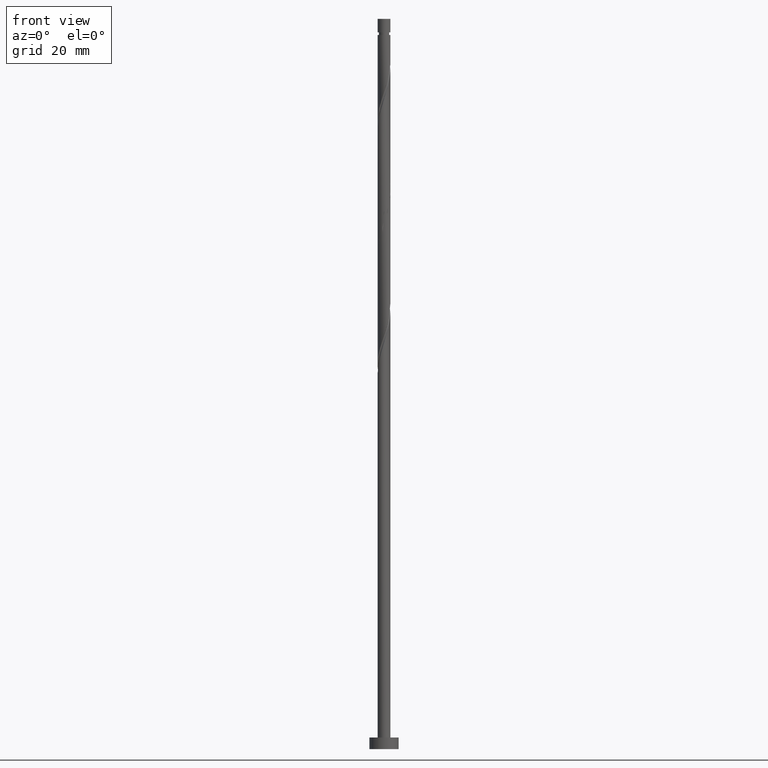
[diagram: clean part render]
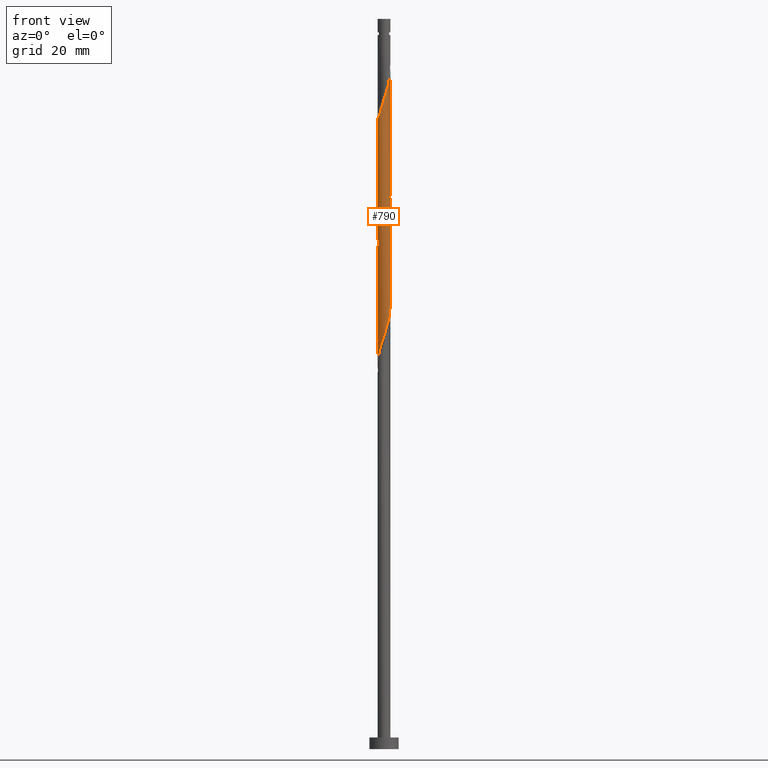
[diagram: same view with one face highlighted and labeled with its STEP entity id]
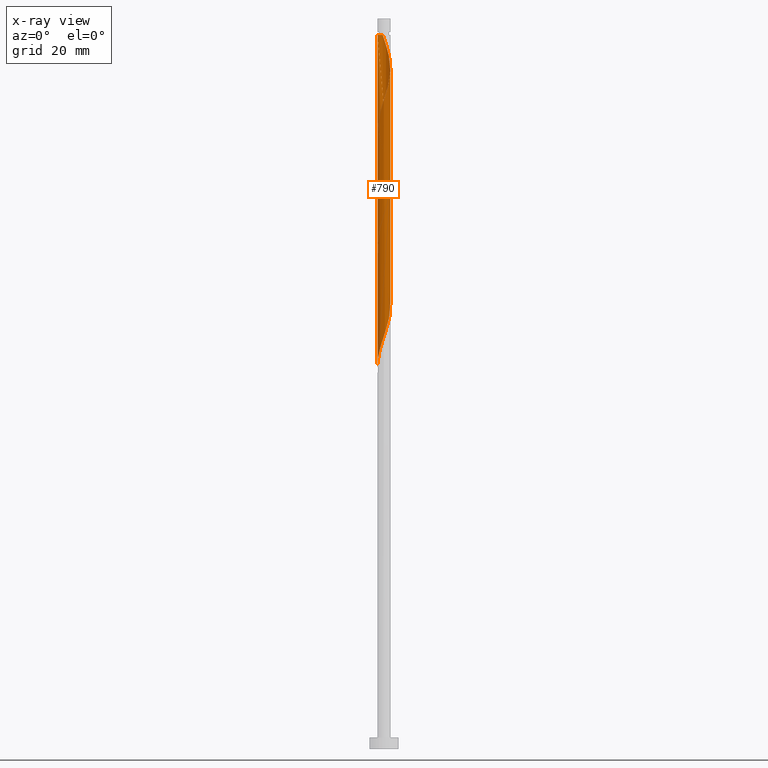
[diagram: x-ray of the same camera — body ghosted, the highlighted face saturated]
A machine part, front view. The second image highlights one B-rep face of the part: STEP entity #790.
The next image is the same camera in x-ray: the body ghosted, the highlighted face saturated — about 0% of this face is hidden behind the body in this view.
In plain terms, the highlighted cylindrical surface (bore or boss wall) has radius 1.1 mm, axis along (-0, -0, -1).
Its self-contained STEP definition (entity closure, byte-faithful):
#18 = ORIENTED_EDGE ( 'NONE', *, *, #606, .F. ) ;
#28 = CARTESIAN_POINT ( 'NONE',  ( -1.100000000000001643, 1.416848213012926496E-15, 65.61334996876993841 ) ) ;
#34 = CARTESIAN_POINT ( 'NONE',  ( 0.6150496721252037835, 0.9284759093548697884, 119.6360475272996808 ) ) ;
#39 = CARTESIAN_POINT ( 'NONE',  ( -1.100000000000001643, -6.821861766358534104E-16, 107.2800166354366240 ) ) ;
#59 = CARTESIAN_POINT ( 'NONE',  ( 0.8718618333782606200, -0.6929722627435900284, 73.80271419396632382 ) ) ;
#60 = LINE ( 'NONE', #134, #1114 ) ;
#62 = EDGE_CURVE ( 'NONE', #919, #1315, #759, .T. ) ;
#63 = CARTESIAN_POINT ( 'NONE',  ( -0.2188972361634659025, 1.077999999999995628, 122.2402141939663807 ) ) ;
#65 = CARTESIAN_POINT ( 'NONE',  ( 1.073093864886444759, 0.2980321636614844394, 76.92771419396633803 ) ) ;
#68 = CYLINDRICAL_SURFACE ( 'NONE', #1442, 1.100000000000000089 ) ;
#93 = CARTESIAN_POINT ( 'NONE',  ( 0.9575959585699628240, -0.5413039627884488336, 95.15688086063299522 ) ) ;
#104 = EDGE_CURVE ( 'NONE', #111, #1315, #796, .T. ) ;
#111 = VERTEX_POINT ( 'NONE', #588 ) ;
#134 = CARTESIAN_POINT ( 'NONE',  ( -1.100000000000000089, 0.000000000000000000, 125.0000000000000000 ) ) ;
#136 = CARTESIAN_POINT ( 'NONE',  ( -0.8718618333782606200, -0.6929722627435901394, 108.1777141939663522 ) ) ;
#141 = CARTESIAN_POINT ( 'NONE',  ( 1.000784887120657718, 0.4565409178933440004, 98.28188086063302364 ) ) ;
#144 = CARTESIAN_POINT ( 'NONE',  ( -0.6150496721252035615, -0.9284759093548700104, 109.2193808606330094 ) ) ;
#148 = CARTESIAN_POINT ( 'NONE',  ( 0.8107240860492302970, 0.7434557527517320352, 99.32354752729968084 ) ) ;
#152 = CARTESIAN_POINT ( 'NONE',  ( 0.7434557527517321462, 0.8107240860492297418, 119.1152141939663380 ) ) ;
#155 = CARTESIAN_POINT ( 'NONE',  ( 0.7434557527517321462, -0.8107240860492301859, 73.28188086063300943 ) ) ;
#165 = CARTESIAN_POINT ( 'NONE',  ( -0.2980321636614846059, 1.073093864886444537, 82.13604752729965242 ) ) ;
#167 = CARTESIAN_POINT ( 'NONE',  ( 0.2188972361634571595, 1.078000000000001846, 101.4068808606330094 ) ) ;
#179 = CARTESIAN_POINT ( 'NONE',  ( -1.000784887120657496, -0.4565409178933440559, 87.86521419396635224 ) ) ;
#189 = EDGE_CURVE ( 'NONE', #919, #224, #1407, .T. ) ;
#200 = DIRECTION ( 'NONE',  ( -0.000000000000000000, -0.000000000000000000, -1.000000000000000000 ) ) ;
#224 = VERTEX_POINT ( 'NONE', #692 ) ;
#245 = DIRECTION ( 'NONE',  ( -0.000000000000000000, -0.000000000000000000, -1.000000000000000000 ) ) ;
#250 = CARTESIAN_POINT ( 'NONE',  ( 0.9284759093548698994, 0.6150496721252033394, 98.80271419396633803 ) ) ;
#252 = CARTESIAN_POINT ( 'NONE',  ( 0.04815880949360637486, -1.112669916238338219, 111.3027141939663522 ) ) ;
#259 = CARTESIAN_POINT ( 'NONE',  ( 0.9284759093548698994, 0.6150496721252033394, 77.96938086063298101 ) ) ;
#260 = CARTESIAN_POINT ( 'NONE',  ( 0.6929722627435901394, 0.8718618333782606200, 99.84438086063300943 ) ) ;
#263 = CARTESIAN_POINT ( 'NONE',  ( -1.043330083761664806, -0.3896356628333071948, 107.1360475272997093 ) ) ;
#266 = CARTESIAN_POINT ( 'NONE',  ( -1.100000000000001643, -6.821861766358534104E-16, 107.2800166354366240 ) ) ;
#267 = CARTESIAN_POINT ( 'NONE',  ( 0.6150496721252036725, -0.9284759093548698994, 72.76104752729966663 ) ) ;
#268 = CARTESIAN_POINT ( 'NONE',  ( 1.073093864886444759, 0.2980321636614844394, 97.76104752729966663 ) ) ;
#274 = CARTESIAN_POINT ( 'NONE',  ( -1.100000000000000089, 0.000000000000000000, 125.0000000000000000 ) ) ;
#279 = CARTESIAN_POINT ( 'NONE',  ( 0.8107240860492302970, 0.7434557527517320352, 78.49021419396633803 ) ) ;
#284 = CARTESIAN_POINT ( 'NONE',  ( 0.1249366770839392821, 1.092881890562391600, 121.1985475272996666 ) ) ;
#291 = CARTESIAN_POINT ( 'NONE',  ( 0.2980321636614845504, -1.073093864886444537, 92.55271419396632382 ) ) ;
#299 = CARTESIAN_POINT ( 'NONE',  ( -1.073093864886444537, -0.2980321636614846059, 87.34438086063300943 ) ) ;
#305 = ORIENTED_EDGE ( 'NONE', *, *, #1275, .F. ) ;
#306 = CARTESIAN_POINT ( 'NONE',  ( 1.100000000000002309, -0.1105541596785114128, 96.52904539336211087 ) ) ;
#313 = CARTESIAN_POINT ( 'NONE',  ( 0.1249366770839388519, -1.092881890562391822, 71.19854752729968084 ) ) ;
#330 = CARTESIAN_POINT ( 'NONE',  ( 0.4565409178933440559, -1.000784887120657496, 93.07354752729966663 ) ) ;
#334 = ORIENTED_EDGE ( 'NONE', *, *, #189, .T. ) ;
#337 = CARTESIAN_POINT ( 'NONE',  ( 1.100000000000001865, 1.514303381103762895E-15, 96.86334996876995262 ) ) ;
#357 = CARTESIAN_POINT ( 'NONE',  ( -0.8718618333782606200, 0.6929722627435899174, 105.0527141939663238 ) ) ;
#374 = CARTESIAN_POINT ( 'NONE',  ( -0.1249366770839390184, 1.092881890562391822, 81.61521419396635224 ) ) ;
#382 = CARTESIAN_POINT ( 'NONE',  ( -1.073093864886444537, -0.2980321636614846059, 66.51104752729968084 ) ) ;
#386 = CARTESIAN_POINT ( 'NONE',  ( -0.7434557527517319242, -0.8107240860492298529, 108.6985475272996666 ) ) ;
#393 = CARTESIAN_POINT ( 'NONE',  ( -0.1249366770839390184, 1.092881890562391822, 102.4485475272996950 ) ) ;
#396 = CARTESIAN_POINT ( 'NONE',  ( -0.1249366770839391017, -1.092881890562391600, 110.7818808606330094 ) ) ;
#398 = ORIENTED_EDGE ( 'NONE', *, *, #104, .T. ) ;
#400 = CARTESIAN_POINT ( 'NONE',  ( 0.9575959585699624910, 0.5413039627884483895, 118.0735475272996950 ) ) ;
#406 = CARTESIAN_POINT ( 'NONE',  ( -0.9284759093548698994, -0.6150496721252036725, 88.38604752729968084 ) ) ;
#407 = DIRECTION ( 'NONE',  ( -0.000000000000000000, -0.000000000000000000, -1.000000000000000000 ) ) ;
#430 = LINE ( 'NONE', #636, #851 ) ;
#432 = CARTESIAN_POINT ( 'NONE',  ( 0.8718618333782606200, -0.6929722627435900284, 94.63604752729968084 ) ) ;
#460 = AXIS2_PLACEMENT_3D ( 'NONE', #486, #722, #516 ) ;
#468 = CARTESIAN_POINT ( 'NONE',  ( -0.9284759093548698994, -0.6150496721252036725, 67.55271419396633803 ) ) ;
#476 = CARTESIAN_POINT ( 'NONE',  ( -1.078000000000001402, -0.2188972361634568264, 106.6152141939663380 ) ) ;
#484 = CARTESIAN_POINT ( 'NONE',  ( -0.9575959585699628240, 0.5413039627884487226, 84.74021419396635224 ) ) ;
#486 = CARTESIAN_POINT ( 'NONE',  ( 0.000000000000000000, 0.000000000000000000, 122.2402141939663380 ) ) ;
#490 = CARTESIAN_POINT ( 'NONE',  ( -0.2188972361634659025, 1.077999999999995628, 122.2402141939663807 ) ) ;
#492 = CARTESIAN_POINT ( 'NONE',  ( 1.078000000000001846, -0.2188972361634571040, 75.36521419396638066 ) ) ;
#495 = CARTESIAN_POINT ( 'NONE',  ( 1.000784887120657052, -0.4565409178933442225, 114.9485475272996808 ) ) ;
#502 = CARTESIAN_POINT ( 'NONE',  ( 0.3896356628333075833, 1.043330083761664362, 100.8860475272996666 ) ) ;
#514 = FACE_OUTER_BOUND ( 'NONE', #1144, .T. ) ;
#516 = DIRECTION ( 'NONE',  ( -1.000000000000000000, 0.000000000000000000, 0.000000000000000000 ) ) ;
#518 = CARTESIAN_POINT ( 'NONE',  ( 1.043330083761664362, -0.3896356628333074168, 74.84438086063300943 ) ) ;
#525 = CARTESIAN_POINT ( 'NONE',  ( -0.3896356628333073613, -1.043330083761664362, 69.63604752729966663 ) ) ;
#553 = CARTESIAN_POINT ( 'NONE',  ( -0.2188972361634570762, -1.078000000000001846, 70.15688086063300943 ) ) ;
#556 = VECTOR ( 'NONE', #245, 1000.000000000000000 ) ;
#588 = CARTESIAN_POINT ( 'NONE',  ( -1.099999999999996980, 0.000000000000000000, 122.2402141939663380 ) ) ;
#594 = CARTESIAN_POINT ( 'NONE',  ( -1.100000000000000089, -0.1105541596785187680, 106.2847163279039364 ) ) ;
#598 = CARTESIAN_POINT ( 'NONE',  ( 1.112669916238338441, -0.04815880949360672181, 75.88604752729969505 ) ) ;
#604 = CARTESIAN_POINT ( 'NONE',  ( -0.9575959585699624910, -0.5413039627884485006, 107.6568808606330236 ) ) ;
#606 = EDGE_CURVE ( 'NONE', #823, #224, #1310, .T. ) ;
#623 = CARTESIAN_POINT ( 'NONE',  ( -0.04815880949361090596, 1.112669916238338885, 121.7193808606330236 ) ) ;
#627 = VERTEX_POINT ( 'NONE', #39 ) ;
#631 = CARTESIAN_POINT ( 'NONE',  ( -0.3896356628333073613, -1.043330083761664362, 90.46938086063298101 ) ) ;
#636 = CARTESIAN_POINT ( 'NONE',  ( 1.100000000000000089, 1.347111479062088503E-16, 125.0000000000000000 ) ) ;
#641 = CARTESIAN_POINT ( 'NONE',  ( -1.112669916238338441, 0.04815880949360658997, 86.30271419396632382 ) ) ;
#661 = CARTESIAN_POINT ( 'NONE',  ( -0.04815880949360666630, -1.112669916238338441, 70.67771419396636645 ) ) ;
#671 = CARTESIAN_POINT ( 'NONE',  ( -0.6150496721252036725, 0.9284759093548698994, 104.0110475272996666 ) ) ;
#676 = CARTESIAN_POINT ( 'NONE',  ( -1.043330083761665028, 0.3896356628333072503, 106.0943808606329810 ) ) ;
#683 = CARTESIAN_POINT ( 'NONE',  ( -0.7434557527517322573, 0.8107240860492299639, 104.5318808606330094 ) ) ;
#692 = CARTESIAN_POINT ( 'NONE',  ( -1.100000000000001643, 1.416848213012926496E-15, 65.61334996876993841 ) ) ;
#696 = VERTEX_POINT ( 'NONE', #1256 ) ;
#698 = DIRECTION ( 'NONE',  ( -0.000000000000000000, -0.000000000000000000, -1.000000000000000000 ) ) ;
#702 = CARTESIAN_POINT ( 'NONE',  ( 1.078000000000001402, 0.2188972361634567154, 117.0318808606330379 ) ) ;
#708 = CARTESIAN_POINT ( 'NONE',  ( 1.100000000000001421, 0.06267111119107836303, 97.05286105797722485 ) ) ;
#713 = CARTESIAN_POINT ( 'NONE',  ( 0.9284759093548700104, -0.6150496721252037835, 114.4277141939663665 ) ) ;
#717 = CARTESIAN_POINT ( 'NONE',  ( 0.4565409178933440559, -1.000784887120657496, 72.24021419396633803 ) ) ;
#718 = CARTESIAN_POINT ( 'NONE',  ( 0.5413039627884489446, 0.9575959585699627130, 100.3652141939663380 ) ) ;
#722 = DIRECTION ( 'NONE',  ( -0.000000000000000000, -0.000000000000000000, -1.000000000000000000 ) ) ;
#734 = CARTESIAN_POINT ( 'NONE',  ( -0.4565409178933441670, 1.000784887120657496, 82.65688086063303786 ) ) ;
#739 = CARTESIAN_POINT ( 'NONE',  ( -0.04815880949360666630, -1.112669916238338441, 91.51104752729968084 ) ) ;
#742 = CARTESIAN_POINT ( 'NONE',  ( -0.6929722627435900284, -0.8718618333782606200, 68.59438086063302364 ) ) ;
#759 =( BOUNDED_CURVE ( )  B_SPLINE_CURVE ( 2, ( #803, #594, #476, #263, #604, #136, #386, #144, #1259, #1397, #396, #252, #1278, #830, #1182, #1022, #1253, #713, #495, #1065, #936, #912, #702, #1045, #400, #1387, #152, #34, #1029, #1287, #284, #623, #63 ),
 .UNSPECIFIED., .F., .T. ) 
 B_SPLINE_CURVE_WITH_KNOTS ( ( 3, 2, 2, 2, 2, 2, 2, 2, 2, 2, 2, 2, 2, 2, 2, 2, 3 ),
 ( 0.5545322023138555823, 0.5625000000000000000, 0.5749999999999999556, 0.5875000000000001332, 0.6000000000000000888, 0.6125000000000001554, 0.6250000000000001110, 0.6375000000000000666, 0.6500000000000001332, 0.6625000000000001998, 0.6750000000000002665, 0.6875000000000002220, 0.7000000000000001776, 0.7125000000000003553, 0.7250000000000003109, 0.7375000000000003775, 0.7500000000000003331 ),
 .UNSPECIFIED. ) 
 CURVE ( )  GEOMETRIC_REPRESENTATION_ITEM ( )  RATIONAL_B_SPLINE_CURVE ( ( 0.9039174447099480592, 0.9019565955404779123, 0.9090909090909261581, 0.8978984914501420000, 0.9090909090909261581, 0.8978984914501420000, 0.9090909090909261581, 0.8978984914501420000, 0.9090909090909261581, 0.8978984914501420000, 0.9090909090909261581, 0.8978984914501420000, 0.9090909090909261581, 0.8978984914501420000, 0.9090909090909261581, 0.8978984914501420000, 0.9090909090909261581, 0.8978984914501420000, 0.9090909090909261581, 0.8978984914501420000, 0.9090909090909261581, 0.8978984914501420000, 0.9090909090909261581, 0.8978984914501420000, 0.9090909090909261581, 0.8978984914501420000, 0.9090909090909261581, 0.8978984914501420000, 0.9090909090909261581, 0.8978984914501420000, 0.9090909090909261581, 0.8978984914501416670, 0.9090909090909264911 ) ) 
 REPRESENTATION_ITEM ( '' )  );
#776 = CARTESIAN_POINT ( 'NONE',  ( -1.078000000000001846, 0.2188972361634569930, 106.6152141939663380 ) ) ;
#790 = ADVANCED_FACE ( 'NONE', ( #514 ), #68, .T. ) ;
#796 = CIRCLE ( 'NONE', #460, 1.099999999999996980 ) ;
#801 = CARTESIAN_POINT ( 'NONE',  ( -1.100000000000002309, 0.1105541596785102471, 106.9457120600287396 ) ) ;
#803 = CARTESIAN_POINT ( 'NONE',  ( -1.100000000000001643, -7.346620363770735786E-16, 105.9504117524960805 ) ) ;
#822 = CARTESIAN_POINT ( 'NONE',  ( -0.6150496721252036725, 0.9284759093548698994, 83.17771419396633803 ) ) ;
#823 = VERTEX_POINT ( 'NONE', #337 ) ;
#825 = CARTESIAN_POINT ( 'NONE',  ( 1.092881890562391822, 0.1249366770839387963, 97.24021419396636645 ) ) ;
#829 = CARTESIAN_POINT ( 'NONE',  ( 0.1249366770839388519, -1.092881890562391822, 92.03188086063302364 ) ) ;
#830 = CARTESIAN_POINT ( 'NONE',  ( 0.3896356628333070837, -1.043330083761664806, 112.3443808606330094 ) ) ;
#844 = DIRECTION ( 'NONE',  ( -1.000000000000000000, 0.000000000000000000, 0.000000000000000000 ) ) ;
#851 = VECTOR ( 'NONE', #200, 1000.000000000000000 ) ;
#868 = CARTESIAN_POINT ( 'NONE',  ( 0.7434557527517321462, -0.8107240860492301859, 94.11521419396635224 ) ) ;
#880 = ORIENTED_EDGE ( 'NONE', *, *, #986, .F. ) ;
#893 = CARTESIAN_POINT ( 'NONE',  ( -0.9575959585699628240, 0.5413039627884487226, 105.5735475272996808 ) ) ;
#912 = CARTESIAN_POINT ( 'NONE',  ( 1.112669916238338219, 0.04815880949360629854, 116.5110475272996950 ) ) ;
#919 = VERTEX_POINT ( 'NONE', #1381 ) ;
#932 = CARTESIAN_POINT ( 'NONE',  ( 0.04815880949360650670, 1.112669916238338441, 101.9277141939663665 ) ) ;
#935 = CARTESIAN_POINT ( 'NONE',  ( -0.8107240860492301859, -0.7434557527517321462, 88.90688086063300943 ) ) ;
#936 = CARTESIAN_POINT ( 'NONE',  ( 1.092881890562391600, -0.1249366770839391572, 115.9902141939663522 ) ) ;
#957 = CARTESIAN_POINT ( 'NONE',  ( -0.6929722627435900284, -0.8718618333782606200, 89.42771419396633803 ) ) ;
#966 = EDGE_CURVE ( 'NONE', #627, #823, #1454, .T. ) ;
#986 = EDGE_CURVE ( 'NONE', #111, #627, #60, .T. ) ;
#1002 = ORIENTED_EDGE ( 'NONE', *, *, #1275, .T. ) ;
#1005 = CARTESIAN_POINT ( 'NONE',  ( -0.8107240860492301859, -0.7434557527517321462, 68.07354752729969505 ) ) ;
#1010 = CARTESIAN_POINT ( 'NONE',  ( -0.4565409178933441670, 1.000784887120657496, 103.4902141939663665 ) ) ;
#1022 = CARTESIAN_POINT ( 'NONE',  ( 0.6929722627435899174, -0.8718618333782606200, 113.3860475272996808 ) ) ;
#1025 = CARTESIAN_POINT ( 'NONE',  ( -0.7434557527517322573, 0.8107240860492299639, 83.69854752729968084 ) ) ;
#1029 = CARTESIAN_POINT ( 'NONE',  ( 0.4565409178933443335, 1.000784887120657052, 120.1568808606329952 ) ) ;
#1035 = CARTESIAN_POINT ( 'NONE',  ( -1.100000000000001865, -0.06267111119107700301, 65.80286105797722485 ) ) ;
#1038 = CARTESIAN_POINT ( 'NONE',  ( 1.092881890562391822, 0.1249366770839387963, 76.40688086063302364 ) ) ;
#1045 = CARTESIAN_POINT ( 'NONE',  ( 1.043330083761664806, 0.3896356628333070837, 117.5527141939663380 ) ) ;
#1062 = CARTESIAN_POINT ( 'NONE',  ( 1.100000000000001865, 1.514303381103762895E-15, 96.86334996876995262 ) ) ;
#1065 = CARTESIAN_POINT ( 'NONE',  ( 1.073093864886444537, -0.2980321636614846614, 115.4693808606330236 ) ) ;
#1067 = CARTESIAN_POINT ( 'NONE',  ( 0.5413039627884489446, 0.9575959585699627130, 79.53188086063302364 ) ) ;
#1080 = CARTESIAN_POINT ( 'NONE',  ( -1.043330083761665028, 0.3896356628333072503, 85.26104752729969505 ) ) ;
#1098 = CARTESIAN_POINT ( 'NONE',  ( 1.043330083761664362, -0.3896356628333074168, 95.67771419396632382 ) ) ;
#1114 = VECTOR ( 'NONE', #698, 1000.000000000000000 ) ;
#1130 = CARTESIAN_POINT ( 'NONE',  ( -1.000784887120657496, -0.4565409178933440559, 67.03188086063300943 ) ) ;
#1144 = EDGE_LOOP ( 'NONE', ( #880, #398, #1338, #334, #18, #305, #1002, #1234 ) ) ;
#1153 = CARTESIAN_POINT ( 'NONE',  ( -1.092881890562391822, -0.1249366770839389629, 65.99021419396635224 ) ) ;
#1155 = CARTESIAN_POINT ( 'NONE',  ( 1.000784887120657718, 0.4565409178933440004, 77.44854752729968084 ) ) ;
#1160 = CARTESIAN_POINT ( 'NONE',  ( -0.2188972361634570762, -1.078000000000001846, 90.99021419396635224 ) ) ;
#1169 = CARTESIAN_POINT ( 'NONE',  ( 0.2980321636614845504, -1.073093864886444537, 71.71938086063300943 ) ) ;
#1182 = CARTESIAN_POINT ( 'NONE',  ( 0.5413039627884483895, -0.9575959585699624910, 112.8652141939663665 ) ) ;
#1186 = CARTESIAN_POINT ( 'NONE',  ( 0.3896356628333075833, 1.043330083761664362, 80.05271419396633803 ) ) ;
#1198 = CARTESIAN_POINT ( 'NONE',  ( -1.092881890562391822, -0.1249366770839389629, 86.82354752729969505 ) ) ;
#1220 = CARTESIAN_POINT ( 'NONE',  ( 0.6150496721252036725, -0.9284759093548698994, 93.59438086063300943 ) ) ;
#1234 = ORIENTED_EDGE ( 'NONE', *, *, #966, .F. ) ;
#1246 = CARTESIAN_POINT ( 'NONE',  ( -0.2980321636614846059, 1.073093864886444537, 102.9693808606329952 ) ) ;
#1253 = CARTESIAN_POINT ( 'NONE',  ( 0.8107240860492298529, -0.7434557527517319242, 113.9068808606330094 ) ) ;
#1256 = CARTESIAN_POINT ( 'NONE',  ( 1.100000000000000089, 1.347111479062088503E-16, 122.2402141939663807 ) ) ;
#1259 = CARTESIAN_POINT ( 'NONE',  ( -0.4565409178933442225, -1.000784887120657052, 109.7402141939663807 ) ) ;
#1262 = CARTESIAN_POINT ( 'NONE',  ( 0.6929722627435901394, 0.8718618333782606200, 79.01104752729969505 ) ) ;
#1266 = CARTESIAN_POINT ( 'NONE',  ( -0.8718618333782606200, 0.6929722627435899174, 84.21938086063303786 ) ) ;
#1271 = CARTESIAN_POINT ( 'NONE',  ( 0.9575959585699628240, -0.5413039627884488336, 74.32354752729969505 ) ) ;
#1275 = EDGE_CURVE ( 'NONE', #696, #823, #430, .T. ) ;
#1278 = CARTESIAN_POINT ( 'NONE',  ( 0.2188972361634567432, -1.078000000000001402, 111.8235475272996808 ) ) ;
#1287 = CARTESIAN_POINT ( 'NONE',  ( 0.2980321636614847169, 1.073093864886444537, 120.6777141939663522 ) ) ;
#1296 = CARTESIAN_POINT ( 'NONE',  ( 0.04815880949360650670, 1.112669916238338441, 81.09438086063300943 ) ) ;
#1300 = CARTESIAN_POINT ( 'NONE',  ( -0.5413039627884487226, -0.9575959585699628240, 89.94854752729968084 ) ) ;
#1310 =( BOUNDED_CURVE ( )  B_SPLINE_CURVE ( 2, ( #1326, #306, #1321, #1098, #93, #432, #868, #1220, #330, #291, #829, #739, #1160, #631, #1300, #957, #935, #406, #179, #299, #1198, #641, #1385, #1080, #484, #1266, #1025, #822, #734, #165, #374, #1296, #1391, #1186, #1067, #1262, #279, #259, #1155, #65, #1038, #598, #492, #518, #1271, #59, #155, #267, #717, #1169, #313, #661, #553, #525, #1440, #742, #1005, #468, #1130, #382, #1153, #1035, #28 ),
 .UNSPECIFIED., .F., .T. ) 
 B_SPLINE_CURVE_WITH_KNOTS ( ( 3, 2, 2, 2, 2, 2, 2, 2, 2, 2, 2, 2, 2, 2, 2, 2, 2, 2, 2, 2, 2, 2, 2, 2, 2, 2, 2, 2, 2, 2, 2, 3 ),
 ( 0.5545322023138550271, 0.5625000000000000000, 0.5749999999999999556, 0.5875000000000000222, 0.5999999999999999778, 0.6125000000000000444, 0.6250000000000000000, 0.6374999999999999556, 0.6500000000000000222, 0.6624999999999999778, 0.6750000000000000444, 0.6875000000000000000, 0.6999999999999999556, 0.7125000000000000222, 0.7249999999999999778, 0.7375000000000000444, 0.7500000000000000000, 0.7624999999999999556, 0.7750000000000000222, 0.7874999999999999778, 0.8000000000000000444, 0.8125000000000000000, 0.8249999999999999556, 0.8375000000000000222, 0.8499999999999999778, 0.8625000000000000444, 0.8750000000000000000, 0.8874999999999999556, 0.9000000000000000222, 0.9124999999999999778, 0.9250000000000000444, 0.9295322023138551382 ),
 .UNSPECIFIED. ) 
 CURVE ( )  GEOMETRIC_REPRESENTATION_ITEM ( )  RATIONAL_B_SPLINE_CURVE ( ( 0.9039174447099491694, 0.9019565955404782454, 0.9090909090909268242, 0.8978984914501428882, 0.9090909090909268242, 0.8978984914501428882, 0.9090909090909268242, 0.8978984914501428882, 0.9090909090909268242, 0.8978984914501428882, 0.9090909090909268242, 0.8978984914501428882, 0.9090909090909268242, 0.8978984914501428882, 0.9090909090909268242, 0.8978984914501428882, 0.9090909090909268242, 0.8978984914501428882, 0.9090909090909268242, 0.8978984914501428882, 0.9090909090909268242, 0.8978984914501428882, 0.9090909090909268242, 0.8978984914501428882, 0.9090909090909268242, 0.8978984914501428882, 0.9090909090909268242, 0.8978984914501428882, 0.9090909090909268242, 0.8978984914501428882, 0.9090909090909268242, 0.8978984914501428882, 0.9090909090909268242, 0.8978984914501428882, 0.9090909090909268242, 0.8978984914501428882, 0.9090909090909268242, 0.8978984914501428882, 0.9090909090909268242, 0.8978984914501428882, 0.9090909090909268242, 0.8978984914501428882, 0.9090909090909268242, 0.8978984914501428882, 0.9090909090909268242, 0.8978984914501428882, 0.9090909090909268242, 0.8978984914501428882, 0.9090909090909268242, 0.8978984914501428882, 0.9090909090909268242, 0.8978984914501428882, 0.9090909090909268242, 0.8978984914501428882, 0.9090909090909268242, 0.8978984914501428882, 0.9090909090909268242, 0.8978984914501428882, 0.9090909090909268242, 0.8978984914501428882, 0.9090909090909268242, 0.9050328050005912450, 0.9039174447099489473 ) ) 
 REPRESENTATION_ITEM ( '' )  );
#1315 = VERTEX_POINT ( 'NONE', #490 ) ;
#1321 = CARTESIAN_POINT ( 'NONE',  ( 1.078000000000001846, -0.2188972361634571040, 96.19854752729968084 ) ) ;
#1326 = CARTESIAN_POINT ( 'NONE',  ( 1.100000000000001865, 1.514303381103762895E-15, 96.86334996876995262 ) ) ;
#1338 = ORIENTED_EDGE ( 'NONE', *, *, #62, .F. ) ;
#1381 = CARTESIAN_POINT ( 'NONE',  ( -1.100000000000001421, -7.346620363770735786E-16, 105.9504117524960805 ) ) ;
#1385 = CARTESIAN_POINT ( 'NONE',  ( -1.078000000000001846, 0.2188972361634569930, 85.78188086063302364 ) ) ;
#1387 = CARTESIAN_POINT ( 'NONE',  ( 0.8718618333782606200, 0.6929722627435901394, 118.5943808606330379 ) ) ;
#1391 = CARTESIAN_POINT ( 'NONE',  ( 0.2188972361634571595, 1.078000000000001846, 80.57354752729968084 ) ) ;
#1397 = CARTESIAN_POINT ( 'NONE',  ( -0.2980321636614846614, -1.073093864886444537, 110.2610475272996808 ) ) ;
#1407 = LINE ( 'NONE', #274, #556 ) ;
#1412 = CARTESIAN_POINT ( 'NONE',  ( 0.000000000000000000, 0.000000000000000000, 125.0000000000000000 ) ) ;
#1440 = CARTESIAN_POINT ( 'NONE',  ( -0.5413039627884487226, -0.9575959585699628240, 69.11521419396635224 ) ) ;
#1442 = AXIS2_PLACEMENT_3D ( 'NONE', #1412, #407, #844 ) ;
#1454 =( BOUNDED_CURVE ( )  B_SPLINE_CURVE ( 2, ( #266, #801, #776, #676, #893, #357, #683, #671, #1010, #1246, #393, #932, #167, #502, #718, #260, #148, #250, #141, #268, #825, #708, #1062 ),
 .UNSPECIFIED., .F., .T. ) 
 B_SPLINE_CURVE_WITH_KNOTS ( ( 3, 2, 2, 2, 2, 2, 2, 2, 2, 2, 2, 3 ),
 ( 0.4295322023138549161, 0.4375000000000000000, 0.4500000000000000111, 0.4625000000000000222, 0.4749999999999999778, 0.4874999999999999889, 0.5000000000000000000, 0.5124999999999999556, 0.5250000000000000222, 0.5374999999999999778, 0.5500000000000000444, 0.5545322023138550271 ),
 .UNSPECIFIED. ) 
 CURVE ( )  GEOMETRIC_REPRESENTATION_ITEM ( )  RATIONAL_B_SPLINE_CURVE ( ( 0.9039174447099492804, 0.9019565955404782454, 0.9090909090909268242, 0.8978984914501428882, 0.9090909090909268242, 0.8978984914501428882, 0.9090909090909268242, 0.8978984914501428882, 0.9090909090909268242, 0.8978984914501428882, 0.9090909090909268242, 0.8978984914501428882, 0.9090909090909268242, 0.8978984914501428882, 0.9090909090909268242, 0.8978984914501428882, 0.9090909090909268242, 0.8978984914501428882, 0.9090909090909268242, 0.8978984914501428882, 0.9090909090909268242, 0.9050328050005913560, 0.9039174447099491694 ) ) 
 REPRESENTATION_ITEM ( '' )  );